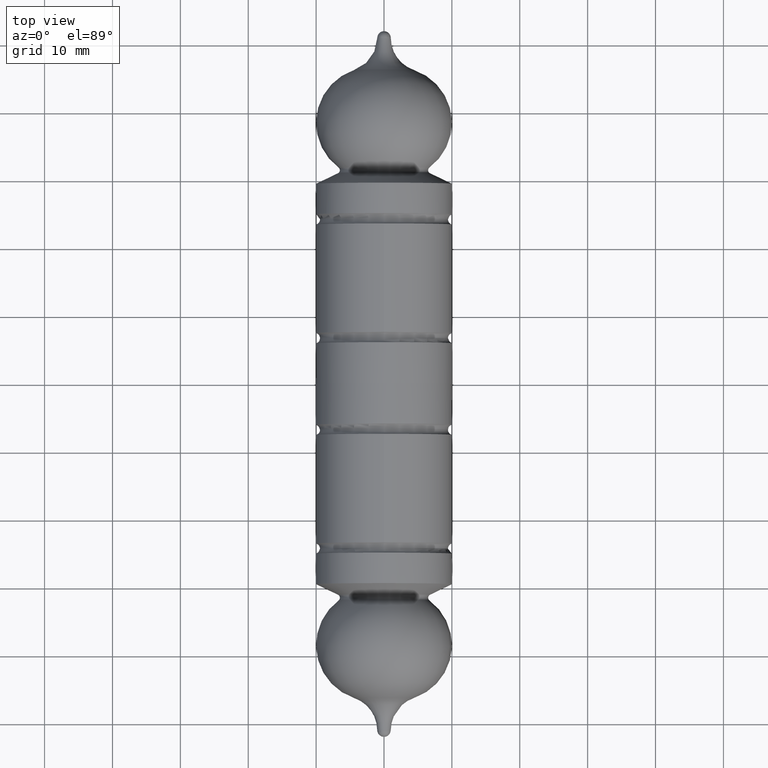
[diagram: clean part render]
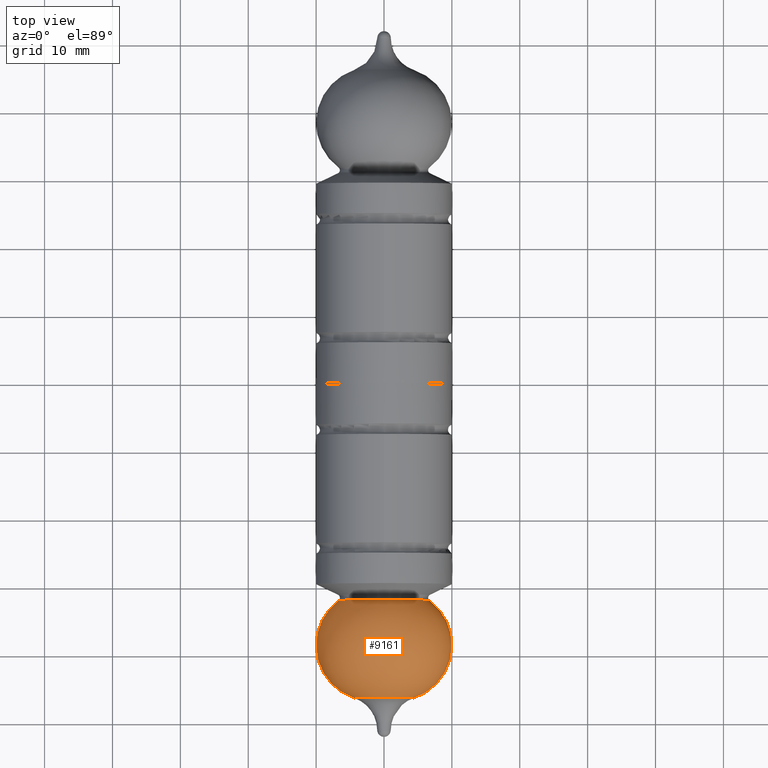
[diagram: same view with one face highlighted and labeled with its STEP entity id]
A machine part, top view. The second image highlights one B-rep face of the part: STEP entity #9161.
In plain terms, the highlighted toroidal blend (fillet) surface has major radius 1.7909 mm and minor (blend) radius 8.2091 mm.
Its self-contained STEP definition (entity closure, byte-faithful):
#155 = ORIENTED_EDGE ( 'NONE', *, *, #340, .T. ) ;
#340 = EDGE_CURVE ( 'NONE', #2135, #2135, #10767, .T. ) ;
#559 = AXIS2_PLACEMENT_3D ( 'NONE', #3383, #5384, #7381 ) ;
#890 = VERTEX_POINT ( 'NONE', #3956 ) ;
#900 = ORIENTED_EDGE ( 'NONE', *, *, #9396, .F. ) ;
#1837 = FACE_OUTER_BOUND ( 'NONE', #3822, .T. ) ;
#2028 = EDGE_LOOP ( 'NONE', ( #900 ) ) ;
#2135 = VERTEX_POINT ( 'NONE', #7447 ) ;
#2882 = DIRECTION ( 'NONE',  ( -1.000000000000000000, 5.811883114597608921E-17, 0.000000000000000000 ) ) ;
#3114 = DIRECTION ( 'NONE',  ( -1.000000000000000000, 0.000000000000000000, 0.000000000000000000 ) ) ;
#3383 = CARTESIAN_POINT ( 'NONE',  ( -1.854031599815047204E-15, -31.90070349416193451, 0.000000000000000000 ) ) ;
#3822 = EDGE_LOOP ( 'NONE', ( #155 ) ) ;
#3956 = CARTESIAN_POINT ( 'NONE',  ( -6.700940290633435659, -31.90070349416193451, 0.000000000000000000 ) ) ;
#4860 = DIRECTION ( 'NONE',  ( 5.811883114597608921E-17, 1.000000000000000000, -0.000000000000000000 ) ) ;
#5268 = TOROIDAL_SURFACE ( 'NONE', #5875, 1.790945213210531684, 8.209054786789476310 ) ;
#5384 = DIRECTION ( 'NONE',  ( 5.811883114597608921E-17, 1.000000000000000000, -0.000000000000000000 ) ) ;
#5414 = FACE_OUTER_BOUND ( 'NONE', #2028, .T. ) ;
#5875 = AXIS2_PLACEMENT_3D ( 'NONE', #7942, #4860, #2882 ) ;
#6639 = AXIS2_PLACEMENT_3D ( 'NONE', #7041, #9068, #3114 ) ;
#7041 = CARTESIAN_POINT ( 'NONE',  ( -2.688614116895631737E-15, -46.26063642165625822, 0.000000000000000000 ) ) ;
#7381 = DIRECTION ( 'NONE',  ( -1.000000000000000000, 0.000000000000000000, 0.000000000000000000 ) ) ;
#7447 = CARTESIAN_POINT ( 'NONE',  ( -4.406753982503360589, -46.26063642165625822, 0.000000000000000000 ) ) ;
#7942 = CARTESIAN_POINT ( 'NONE',  ( -2.168404344971008868E-15, -38.47949736782859986, 0.000000000000000000 ) ) ;
#9068 = DIRECTION ( 'NONE',  ( 5.811883114597608921E-17, 1.000000000000000000, -0.000000000000000000 ) ) ;
#9161 = ADVANCED_FACE ( 'NONE', ( #5414, #1837 ), #5268, .T. ) ;
#9396 = EDGE_CURVE ( 'NONE', #890, #890, #11089, .T. ) ;
#10767 = CIRCLE ( 'NONE', #6639, 4.406753982503358813 ) ;
#11089 = CIRCLE ( 'NONE', #559, 6.700940290633433882 ) ;